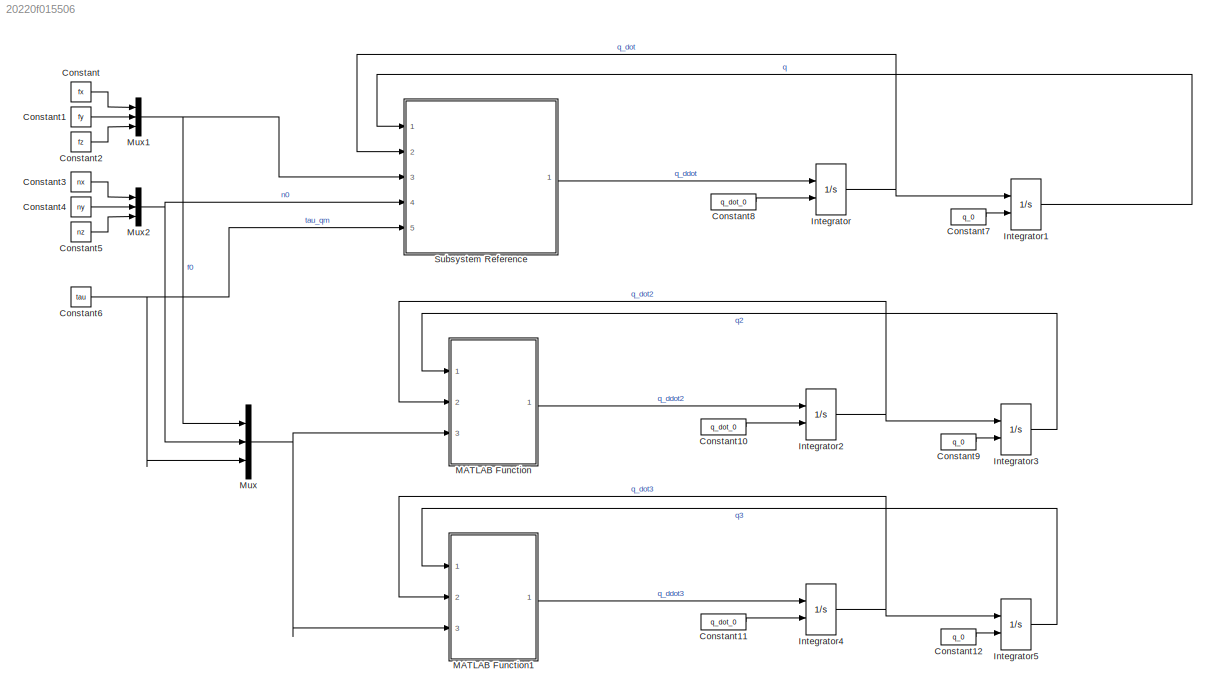
MODEL slx_20220f015506
KIND model
CONFIG AbsTol = auto
CONFIG EnableMultiTasking = off
CONFIG FixedStep = auto
CONFIG MaxStep = auto
CONFIG MinStep = auto
CONFIG RelTol = 1e-3
CONFIG SampleTimeConstraint = Unconstrained
CONFIG SolverName = VariableStepAuto
CONFIG StartTime = 0.0
CONFIG StopTime = 10.0
BLOCK [Constant] Constant
  Value = fx
BLOCK [Constant] Constant1
  Value = fy
BLOCK [Constant] Constant10
  Value = q_dot_0
BLOCK [Constant] Constant11
  Value = q_dot_0
BLOCK [Constant] Constant12
  Value = q_0
BLOCK [Constant] Constant2
  Value = fz
BLOCK [Constant] Constant3
  Value = nx
BLOCK [Constant] Constant4
  Value = ny
BLOCK [Constant] Constant5
  Value = nz
BLOCK [Constant] Constant6
  Value = tau
BLOCK [Constant] Constant7
  Value = q_0
BLOCK [Constant] Constant8
  Value = q_dot_0
BLOCK [Constant] Constant9
  Value = q_0
BLOCK [Integrator] Integrator
  InitialConditionSource = external
  Ports = [2, 1]
BLOCK [Integrator] Integrator1
  InitialConditionSource = external
  Ports = [2, 1]
BLOCK [Integrator] Integrator2
  InitialConditionSource = external
  Ports = [2, 1]
BLOCK [Integrator] Integrator3
  InitialConditionSource = external
  Ports = [2, 1]
BLOCK [Integrator] Integrator4
  InitialConditionSource = external
  Ports = [2, 1]
BLOCK [Integrator] Integrator5
  InitialConditionSource = external
  Ports = [2, 1]
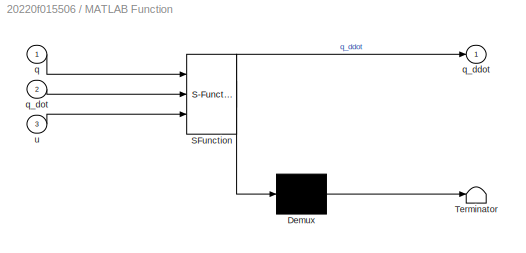
BLOCK [SubSystem] MATLAB Function
  ErrorFcn = Stateflow.Translate.translate
  PermitHierarchicalResolution = ExplicitOnly
  Ports = [3, 1]
  RequestExecContextInheritance = off
  SFBlockType = MATLAB Function
  TreatAsAtomicUnit = on
BLOCK [Demux] MATLAB Function/ Demux 
  Outputs = 1
  Ports = [1, 1]
BLOCK [S-Function] MATLAB Function/ SFunction 
  EnableBusSupport = on
  FunctionName = sf_sfun
  PortCounts = [3 2]
  Ports = [3, 2]
  SFcnIsStateOwnerBlock = off
  SFunctionDeploymentMode = off
  Tag = Stateflow S-Function 2
BLOCK [Terminator] MATLAB Function/ Terminator 
BLOCK [Inport] MATLAB Function/q
BLOCK [Outport] MATLAB Function/q_ddot
BLOCK [Inport] MATLAB Function/q_dot
  Port = 2
BLOCK [Inport] MATLAB Function/u
  Port = 3
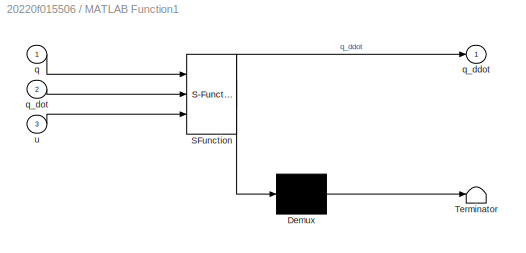
BLOCK [SubSystem] MATLAB Function1
  ErrorFcn = Stateflow.Translate.translate
  PermitHierarchicalResolution = ExplicitOnly
  Ports = [3, 1]
  RequestExecContextInheritance = off
  SFBlockType = MATLAB Function
  TreatAsAtomicUnit = on
BLOCK [Demux] MATLAB Function1/ Demux 
  Outputs = 1
  Ports = [1, 1]
BLOCK [S-Function] MATLAB Function1/ SFunction 
  EnableBusSupport = on
  FunctionName = sf_sfun
  PortCounts = [3 2]
  Ports = [3, 2]
  SFcnIsStateOwnerBlock = off
  SFunctionDeploymentMode = off
  Tag = Stateflow S-Function 1
BLOCK [Terminator] MATLAB Function1/ Terminator 
BLOCK [Inport] MATLAB Function1/q
BLOCK [Outport] MATLAB Function1/q_ddot
BLOCK [Inport] MATLAB Function1/q_dot
  Port = 2
BLOCK [Inport] MATLAB Function1/u
  Port = 3
BLOCK [Mux] Mux
  DisplayOption = bar
  Inputs = 3
  Ports = [3, 1]
BLOCK [Mux] Mux1
  DisplayOption = bar
  Inputs = 3
  Ports = [3, 1]
BLOCK [Mux] Mux2
  DisplayOption = bar
  Inputs = 3
  Ports = [3, 1]
BLOCK [SubSystem] Subsystem Reference
  Ports = [5, 1]
  ReferencedSubsystem = ForwardDynamics
  RequestExecContextInheritance = off
  SimulateUsing = Interpreted execution
  spaceRobot = sr
LINE Constant10:1 -> Integrator2:2
LINE Constant11:1 -> Integrator4:2
LINE Constant12:1 -> Integrator5:2
LINE Constant1:1 -> Mux1:2
LINE Constant2:1 -> Mux1:3
LINE Constant3:1 -> Mux2:1
LINE Constant4:1 -> Mux2:2
LINE Constant5:1 -> Mux2:3
NET Constant6:1 -> Mux:3, Subsystem Reference:5
LINE Constant7:1 -> Integrator1:2
LINE Constant8:1 -> Integrator:2
LINE Constant9:1 -> Integrator3:2
LINE Constant:1 -> Mux1:1
LINE Integrator1:1 -> Subsystem Reference:1
NET Integrator2:1 -> Integrator3:1, MATLAB Function:2
LINE Integrator3:1 -> MATLAB Function:1
NET Integrator4:1 -> Integrator5:1, MATLAB Function1:2
LINE Integrator5:1 -> MATLAB Function1:1
NET Integrator:1 -> Integrator1:1, Subsystem Reference:2
LINE MATLAB Function1:1 -> Integrator4:1
LINE MATLAB Function:1 -> Integrator2:1
NET Mux1:1 -> Mux:1, Subsystem Reference:3
NET Mux2:1 -> Mux:2, Subsystem Reference:4
NET Mux:1 -> MATLAB Function1:3, MATLAB Function:3
LINE Subsystem Reference:1 -> Integrator:1
note: NET lines group one-source signal fan-out (src -> all destinations, sorted); 1:1 wires keep LINE
CHART MATLAB Function1 states=1 transitions=1
  STATE_LABEL 'eML_blk_kernel()'
  STATE_LABEL 'SCRIPT:\nfunction q_ddot = fcn(q, q_dot, u)\n\n%% Load params\nsr_info = SR2_info();\n\n%%\n% 1 - Kinematics\n[Rb, Ra, Rm] = RFunc_SR2(q);\nRm = reshape(Rm, 3, 3, []); % Split Rm to nk 3x3 arrays\n\n% 2 - Kinetics\n[t, ~, Omega, A, A_dot] = Kin(sr_info, q, q_dot, zeros(8, 1), {Rb, Ra, Rm});\n\n% 3 - ID  \nwb = t{1}(4:6);\nC = CorMat(sr_info, wb, Omega, A, A_dot, {Rb, Ra, Rm});\nh = C*q_dot;\n\n% 4 - Mass Mat\nD = Mas...<+56ch>'
CHART MATLAB Function states=1 transitions=1
  STATE_LABEL 'eML_blk_kernel()'
  STATE_LABEL 'SCRIPT:\nfunction q_ddot = fcn(q, q_dot, u)\n\n%% Load params\nsr_info = SR2_info();\n\n%%\n% 1 - Kinematics\n[Rb, Ra, Rm] = RFunc_SR2(q);\nRm = reshape(Rm, 3, 3, []); % Split Rm to nk 3x3 arrays\n\n% 2 - Kinetics\n[t, t_dot, Omega, A, A_dot] = Kin(sr_info, q, q_dot, zeros(8, 1), {Rb, Ra, Rm});\n\n% 3 - ID  \n[tau, ~] = ID(sr_info, t, t_dot, Omega, A, A_dot);\ntau_b = blkdiag(Rb, zeros(3, 3)) * tau{1}; % Express ...<+132ch>'
CHART  states=0 transitions=0
CHART  states=0 transitions=0
